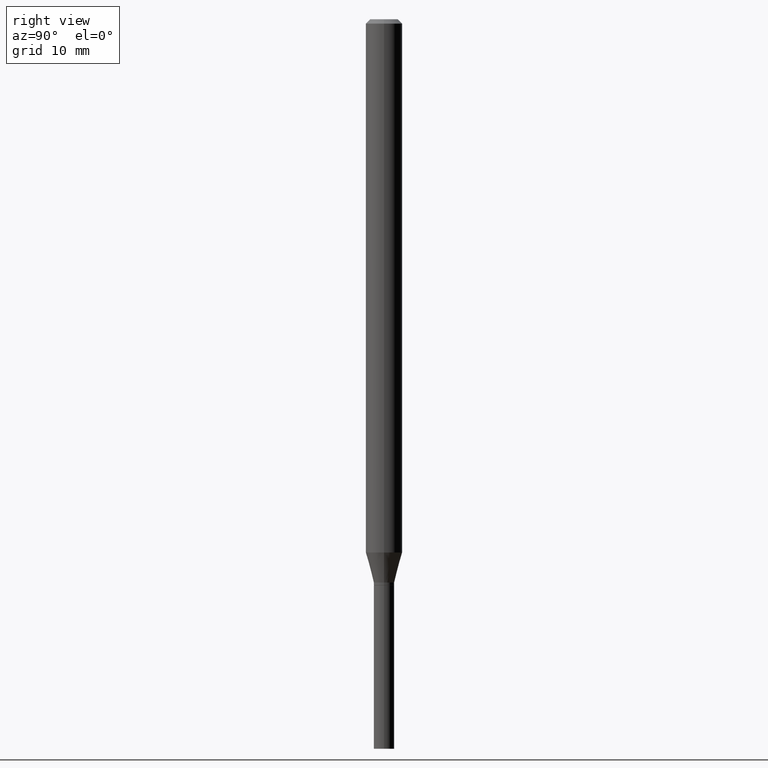
[diagram: clean part render]
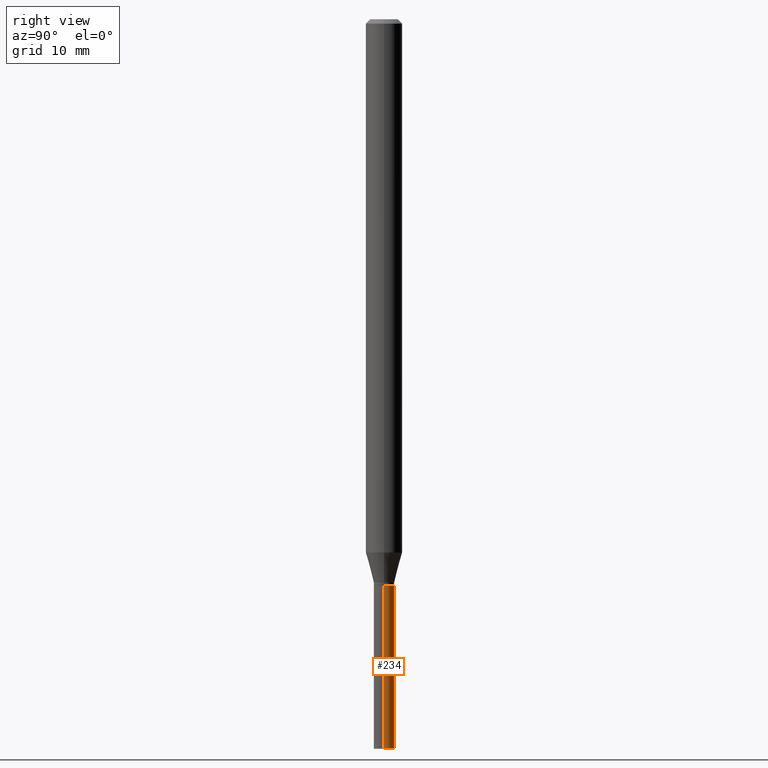
[diagram: same view with one face highlighted and labeled with its STEP entity id]
A machine part, right view. The second image highlights one B-rep face of the part: STEP entity #234.
In plain terms, the highlighted cylindrical surface (edge-blend (fillet) strip) has radius 0.889 mm, axis along (-0, 0, 1).
Its self-contained STEP definition (entity closure, byte-faithful):
#9 = VERTEX_POINT ( 'NONE', #166 ) ;
#11 = VECTOR ( 'NONE', #318, 39.37007874015748143 ) ;
#39 = VERTEX_POINT ( 'NONE', #171 ) ;
#50 = EDGE_CURVE ( 'NONE', #39, #9, #188, .T. ) ;
#67 = AXIS2_PLACEMENT_3D ( 'NONE', #132, #273, #241 ) ;
#72 = EDGE_LOOP ( 'NONE', ( #235, #363, #316, #223 ) ) ;
#77 = EDGE_CURVE ( 'NONE', #9, #399, #305, .T. ) ;
#83 = VERTEX_POINT ( 'NONE', #279 ) ;
#100 = VECTOR ( 'NONE', #451, 39.37007874015748143 ) ;
#110 = DIRECTION ( 'NONE',  ( 1.000000000000000000, -6.982962677686276966E-15, 0.000000000000000000 ) ) ;
#114 = DIRECTION ( 'NONE',  ( -2.445468806185136597E-29, 3.491481338843145583E-15, 1.000000000000000000 ) ) ;
#132 = CARTESIAN_POINT ( 'NONE',  ( 0.000000000000000000, 0.000000000000000000, 0.000000000000000000 ) ) ;
#135 = AXIS2_PLACEMENT_3D ( 'NONE', #364, #114, #110 ) ;
#144 = EDGE_CURVE ( 'NONE', #39, #83, #358, .T. ) ;
#166 = CARTESIAN_POINT ( 'NONE',  ( -0.03500000000000000333, -7.502398614715749004E-15, -2.500000000000000000 ) ) ;
#170 = FACE_OUTER_BOUND ( 'NONE', #72, .T. ) ;
#171 = CARTESIAN_POINT ( 'NONE',  ( 0.03500000000000000333, -8.973107040826884909E-15, -2.500000000000000000 ) ) ;
#178 = DIRECTION ( 'NONE',  ( 1.000000000000000000, -6.982962677686276966E-15, 0.000000000000000000 ) ) ;
#188 = CIRCLE ( 'NONE', #275, 0.03500000000000000333 ) ;
#223 = ORIENTED_EDGE ( 'NONE', *, *, #144, .F. ) ;
#234 = ADVANCED_FACE ( 'NONE', ( #170 ), #454, .T. ) ;
#235 = ORIENTED_EDGE ( 'NONE', *, *, #50, .T. ) ;
#240 = CIRCLE ( 'NONE', #135, 0.03500000000000000333 ) ;
#241 = DIRECTION ( 'NONE',  ( 1.000000000000000000, -6.982962677686265922E-15, 4.876176775795936353E-29 ) ) ;
#273 = DIRECTION ( 'NONE',  ( -2.445468806185136597E-29, 3.491481338843145583E-15, 1.000000000000000000 ) ) ;
#274 = CARTESIAN_POINT ( 'NONE',  ( 6.113672015462842613E-29, -8.728703347107864943E-15, -2.500000000000000000 ) ) ;
#275 = AXIS2_PLACEMENT_3D ( 'NONE', #274, #386, #178 ) ;
#279 = CARTESIAN_POINT ( 'NONE',  ( 0.03500000000000000333, -7.017877491074722814E-15, -1.940000000000000169 ) ) ;
#305 = LINE ( 'NONE', #315, #100 ) ;
#311 = EDGE_CURVE ( 'NONE', #83, #399, #240, .T. ) ;
#315 = CARTESIAN_POINT ( 'NONE',  ( -0.03500000000000000333, 2.486899575160350887E-16, -1.721627281589217108E-30 ) ) ;
#316 = ORIENTED_EDGE ( 'NONE', *, *, #311, .F. ) ;
#318 = DIRECTION ( 'NONE',  ( -2.445468806185136877E-29, 3.491481338843145188E-15, 1.000000000000000000 ) ) ;
#332 = CARTESIAN_POINT ( 'NONE',  ( -0.03500000000000000333, -7.502398614715749004E-15, -1.940000000000000169 ) ) ;
#358 = LINE ( 'NONE', #466, #11 ) ;
#363 = ORIENTED_EDGE ( 'NONE', *, *, #77, .T. ) ;
#364 = CARTESIAN_POINT ( 'NONE',  ( 4.744209483999165043E-29, -6.773473797355702848E-15, -1.940000000000000169 ) ) ;
#386 = DIRECTION ( 'NONE',  ( -2.445468806185136597E-29, 3.491481338843145583E-15, 1.000000000000000000 ) ) ;
#399 = VERTEX_POINT ( 'NONE', #332 ) ;
#451 = DIRECTION ( 'NONE',  ( -2.445468806185136877E-29, 3.491481338843145188E-15, 1.000000000000000000 ) ) ;
#454 = CYLINDRICAL_SURFACE ( 'NONE', #67, 0.03500000000000000333 ) ;
#466 = CARTESIAN_POINT ( 'NONE',  ( 0.03500000000000000333, -2.444036937190193250E-16, 1.706661871528577808E-30 ) ) ;